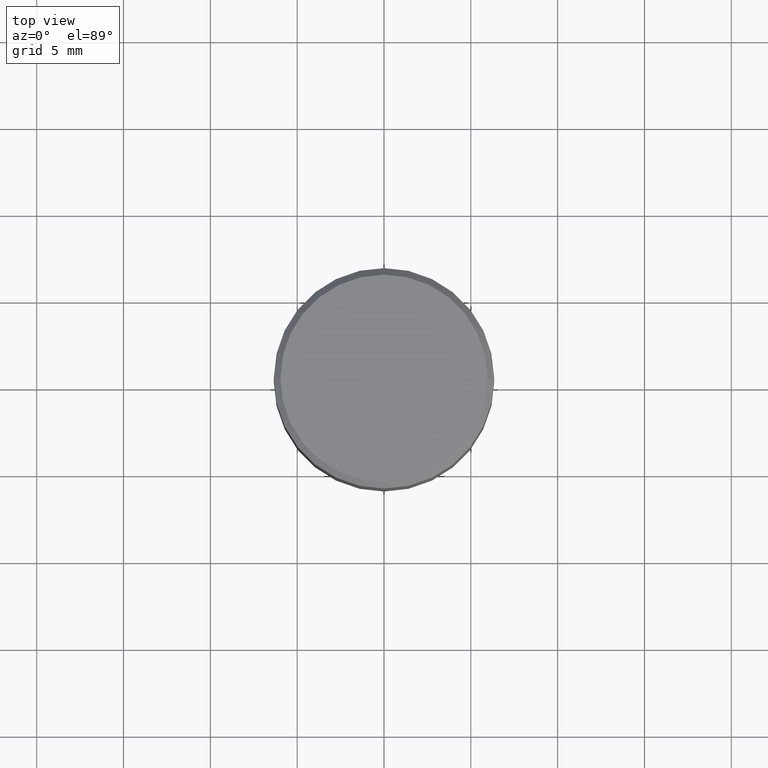
[diagram: clean part render]
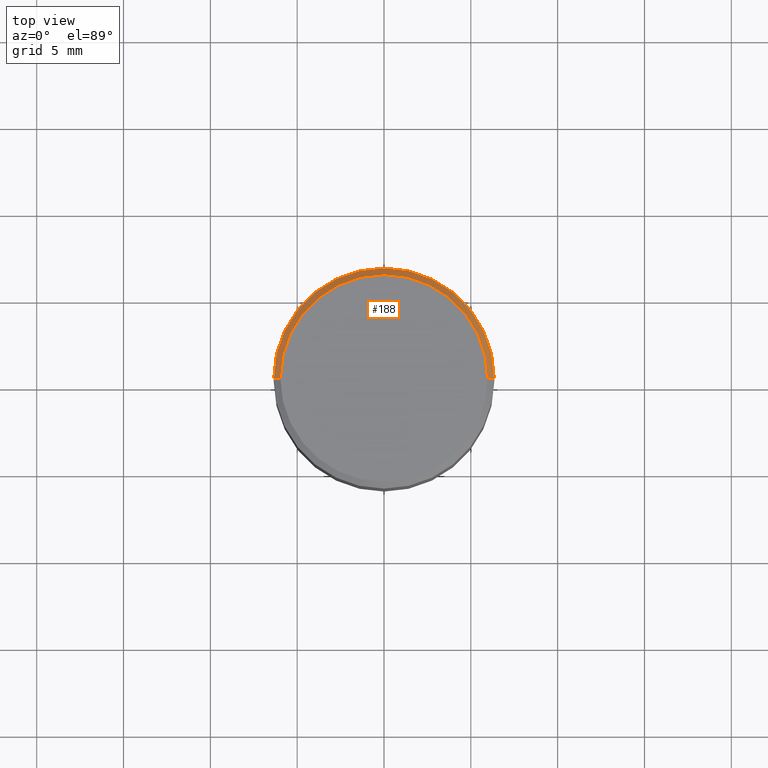
[diagram: same view with one face highlighted and labeled with its STEP entity id]
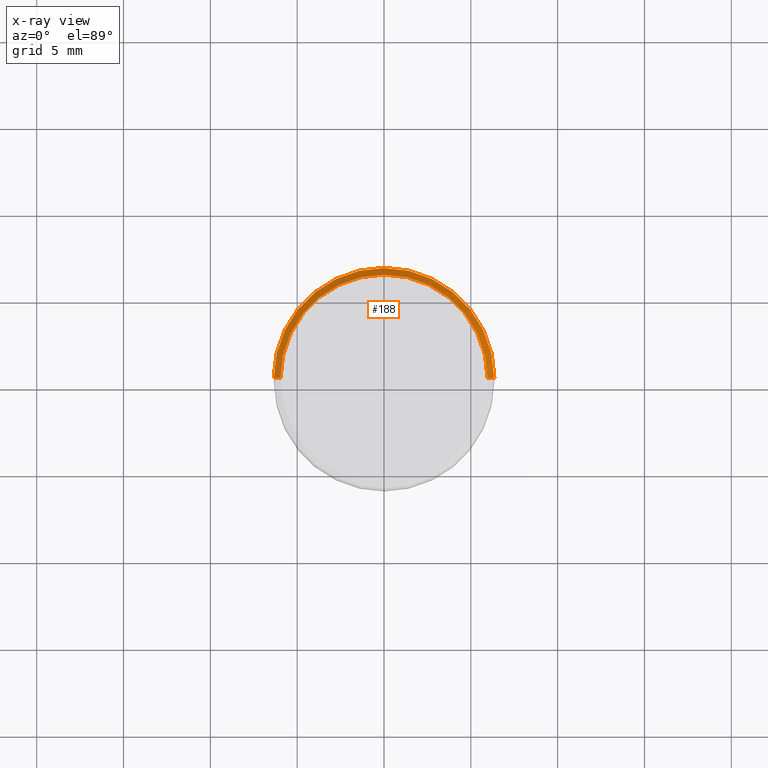
[diagram: x-ray of the same camera — body ghosted, the highlighted face saturated]
A machine part, top view. The second image highlights one B-rep face of the part: STEP entity #188.
The next image is the same camera in x-ray: the body ghosted, the highlighted face saturated — about 0% of this face is hidden behind the body in this view.
In plain terms, the highlighted conical surface has half-angle 45 deg.
Its self-contained STEP definition (entity closure, byte-faithful):
#11 = VECTOR ( 'NONE', #360, 39.37007874015748143 ) ;
#16 = AXIS2_PLACEMENT_3D ( 'NONE', #111, #72, #177 ) ;
#52 = VECTOR ( 'NONE', #104, 39.37007874015748143 ) ;
#63 = CARTESIAN_POINT ( 'NONE',  ( 0.2349999999999999867, -1.689856874500919833E-15, 1.568636843340994368E-16 ) ) ;
#66 = LINE ( 'NONE', #285, #52 ) ;
#72 = DIRECTION ( 'NONE',  ( 2.445468806185136597E-29, -3.491481338843145583E-15, -1.000000000000000000 ) ) ;
#91 = AXIS2_PLACEMENT_3D ( 'NONE', #350, #387, #204 ) ;
#94 = ORIENTED_EDGE ( 'NONE', *, *, #314, .F. ) ;
#104 = DIRECTION ( 'NONE',  ( -0.7071067811865441310, 2.468850131082221167E-15, -0.7071067811865509034 ) ) ;
#111 = CARTESIAN_POINT ( 'NONE',  ( 3.668203209277705088E-31, -5.237222008264718399E-17, -0.01499999999999999944 ) ) ;
#125 = VERTEX_POINT ( 'NONE', #332 ) ;
#128 = EDGE_CURVE ( 'NONE', #310, #190, #393, .T. ) ;
#132 = CIRCLE ( 'NONE', #386, 0.2500000000000000000 ) ;
#138 = EDGE_CURVE ( 'NONE', #190, #125, #132, .T. ) ;
#144 = ORIENTED_EDGE ( 'NONE', *, *, #128, .T. ) ;
#177 = DIRECTION ( 'NONE',  ( -1.000000000000000000, 6.982962677686266711E-15, 0.000000000000000000 ) ) ;
#188 = ADVANCED_FACE ( 'NONE', ( #353 ), #365, .T. ) ;
#190 = VERTEX_POINT ( 'NONE', #207 ) ;
#204 = DIRECTION ( 'NONE',  ( 1.000000000000000000, -6.982962677686267499E-15, 4.878549297894958458E-29 ) ) ;
#207 = CARTESIAN_POINT ( 'NONE',  ( 0.2500000000000000000, -1.798112889504214151E-15, -0.01499999999999999944 ) ) ;
#234 = DIRECTION ( 'NONE',  ( 1.000000000000000000, -6.982962677686266711E-15, 0.000000000000000000 ) ) ;
#252 = ORIENTED_EDGE ( 'NONE', *, *, #138, .T. ) ;
#285 = CARTESIAN_POINT ( 'NONE',  ( -0.2500000000000000000, 1.693368449338919401E-15, -0.01499999999999999944 ) ) ;
#287 = CARTESIAN_POINT ( 'NONE',  ( 3.668203209277705088E-31, -5.237222008264718399E-17, -0.01499999999999999944 ) ) ;
#304 = EDGE_LOOP ( 'NONE', ( #94, #144, #252, #335 ) ) ;
#310 = VERTEX_POINT ( 'NONE', #63 ) ;
#312 = CARTESIAN_POINT ( 'NONE',  ( -0.2349999999999999867, 1.667182339297596256E-15, 1.568636843340762393E-16 ) ) ;
#314 = EDGE_CURVE ( 'NONE', #310, #345, #392, .T. ) ;
#332 = CARTESIAN_POINT ( 'NONE',  ( -0.2500000000000000000, 1.047539074263934229E-15, -0.01499999999999999944 ) ) ;
#335 = ORIENTED_EDGE ( 'NONE', *, *, #343, .F. ) ;
#343 = EDGE_CURVE ( 'NONE', #345, #125, #66, .T. ) ;
#345 = VERTEX_POINT ( 'NONE', #312 ) ;
#350 = CARTESIAN_POINT ( 'NONE',  ( -3.836052468622837406E-45, 5.476866265946494270E-31, 1.568636843340877764E-16 ) ) ;
#353 = FACE_OUTER_BOUND ( 'NONE', #304, .T. ) ;
#360 = DIRECTION ( 'NONE',  ( 0.7071067811865441310, -7.319954787623245001E-15, -0.7071067811865509034 ) ) ;
#365 = CONICAL_SURFACE ( 'NONE', #16, 0.2500000000000000000, 0.7853981633974435050 ) ;
#386 = AXIS2_PLACEMENT_3D ( 'NONE', #287, #440, #234 ) ;
#387 = DIRECTION ( 'NONE',  ( -2.445468806185136597E-29, 3.491481338843145583E-15, 1.000000000000000000 ) ) ;
#392 = CIRCLE ( 'NONE', #91, 0.2349999999999999867 ) ;
#393 = LINE ( 'NONE', #429, #11 ) ;
#429 = CARTESIAN_POINT ( 'NONE',  ( 0.2500000000000000000, -1.767496719525530167E-15, -0.01499999999999999944 ) ) ;
#440 = DIRECTION ( 'NONE',  ( -2.445468806185136597E-29, 3.491481338843145583E-15, 1.000000000000000000 ) ) ;